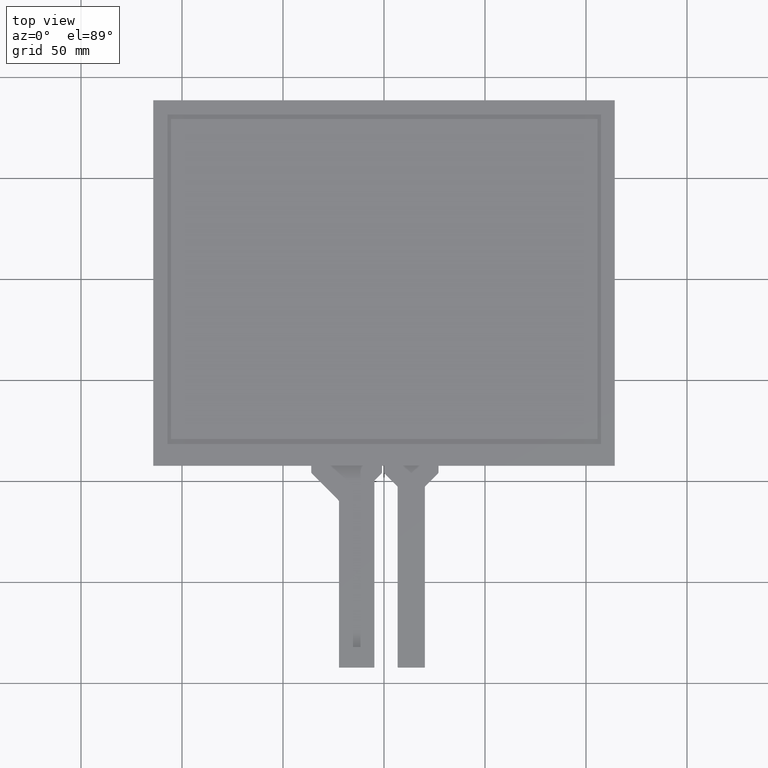
[diagram: clean part render]
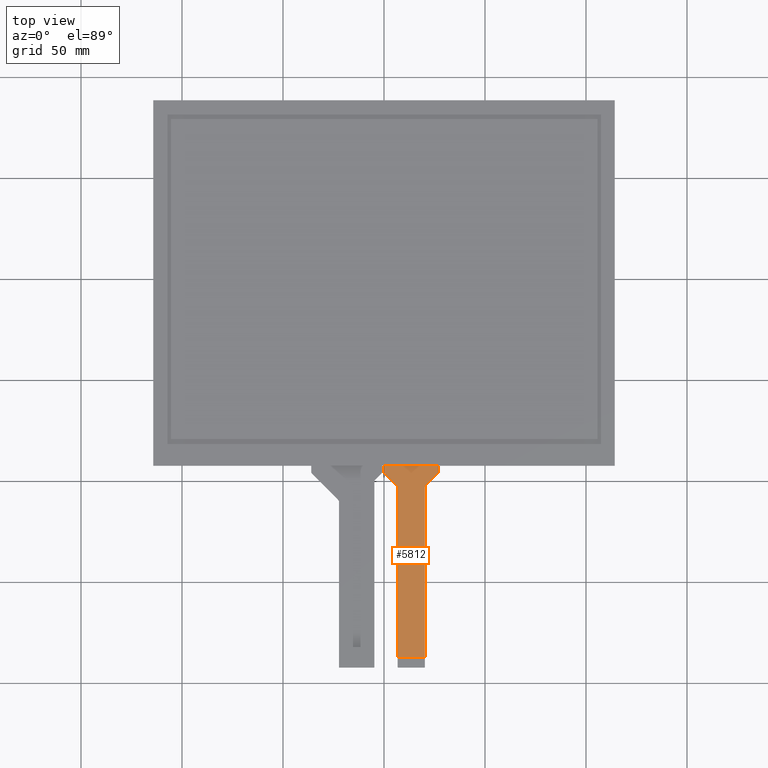
[diagram: same view with one face highlighted and labeled with its STEP entity id]
A machine part, top view. The second image highlights one B-rep face of the part: STEP entity #5812.
In plain terms, the highlighted planar face has unit normal (0, 0, 1).
Its self-contained STEP definition (entity closure, byte-faithful):
#52=PLANE('',#6130);
#336=FACE_OUTER_BOUND('',#630,.T.);
#630=EDGE_LOOP('',(#4088,#4089,#4090,#4091,#4092,#4093,#4094,#4095,#4096,
#4097,#4098,#4099));
#926=LINE('',#7930,#1766);
#936=LINE('',#7953,#1776);
#937=LINE('',#7956,#1777);
#938=LINE('',#7958,#1778);
#939=LINE('',#7960,#1779);
#940=LINE('',#7964,#1780);
#941=LINE('',#7968,#1781);
#942=LINE('',#7969,#1782);
#1766=VECTOR('',#6452,10.);
#1776=VECTOR('',#6470,10.);
#1777=VECTOR('',#6473,10.);
#1778=VECTOR('',#6474,10.);
#1779=VECTOR('',#6475,10.);
#1780=VECTOR('',#6478,10.);
#1781=VECTOR('',#6481,10.);
#1782=VECTOR('',#6482,10.);
#2604=CIRCLE('',#6123,1.);
#2607=CIRCLE('',#6128,1.);
#2608=CIRCLE('',#6131,1.);
#2609=CIRCLE('',#6132,1.);
#2628=VERTEX_POINT('',#7920);
#2629=VERTEX_POINT('',#7921);
#2632=VERTEX_POINT('',#7929);
#2640=VERTEX_POINT('',#7946);
#2641=VERTEX_POINT('',#7948);
#2642=VERTEX_POINT('',#7955);
#2643=VERTEX_POINT('',#7957);
#2644=VERTEX_POINT('',#7959);
#2645=VERTEX_POINT('',#7961);
#2646=VERTEX_POINT('',#7963);
#2647=VERTEX_POINT('',#7965);
#2648=VERTEX_POINT('',#7967);
#3204=EDGE_CURVE('',#2628,#2629,#2604,.T.);
#3208=EDGE_CURVE('',#2632,#2629,#926,.T.);
#3217=EDGE_CURVE('',#2640,#2641,#2607,.T.);
#3220=EDGE_CURVE('',#2628,#2641,#936,.T.);
#3221=EDGE_CURVE('',#2640,#2642,#937,.T.);
#3222=EDGE_CURVE('',#2643,#2642,#938,.T.);
#3223=EDGE_CURVE('',#2643,#2644,#939,.T.);
#3224=EDGE_CURVE('',#2645,#2644,#2608,.T.);
#3225=EDGE_CURVE('',#2645,#2646,#940,.T.);
#3226=EDGE_CURVE('',#2647,#2646,#2609,.T.);
#3227=EDGE_CURVE('',#2647,#2648,#941,.T.);
#3228=EDGE_CURVE('',#2648,#2632,#942,.T.);
#4088=ORIENTED_EDGE('',*,*,#3217,.F.);
#4089=ORIENTED_EDGE('',*,*,#3221,.T.);
#4090=ORIENTED_EDGE('',*,*,#3222,.F.);
#4091=ORIENTED_EDGE('',*,*,#3223,.T.);
#4092=ORIENTED_EDGE('',*,*,#3224,.F.);
#4093=ORIENTED_EDGE('',*,*,#3225,.T.);
#4094=ORIENTED_EDGE('',*,*,#3226,.F.);
#4095=ORIENTED_EDGE('',*,*,#3227,.T.);
#4096=ORIENTED_EDGE('',*,*,#3228,.T.);
#4097=ORIENTED_EDGE('',*,*,#3208,.T.);
#4098=ORIENTED_EDGE('',*,*,#3204,.F.);
#4099=ORIENTED_EDGE('',*,*,#3220,.T.);
#5812=ADVANCED_FACE('',(#336),#52,.T.);
#6123=AXIS2_PLACEMENT_3D('',#7922,#6444,#6445);
#6128=AXIS2_PLACEMENT_3D('',#7949,#6464,#6465);
#6130=AXIS2_PLACEMENT_3D('',#7954,#6471,#6472);
#6131=AXIS2_PLACEMENT_3D('',#7962,#6476,#6477);
#6132=AXIS2_PLACEMENT_3D('',#7966,#6479,#6480);
#6444=DIRECTION('center_axis',(0.,0.,1.));
#6445=DIRECTION('ref_axis',(-0.923166632761977,0.384400010607327,0.));
#6452=DIRECTION('',(-4.45574458043541E-16,1.,0.));
#6464=DIRECTION('center_axis',(0.,0.,-1.));
#6465=DIRECTION('ref_axis',(0.923166632761977,-0.384400010607327,0.));
#6470=DIRECTION('',(0.709730526852057,0.704473263690185,0.));
#6471=DIRECTION('center_axis',(0.,0.,1.));
#6472=DIRECTION('ref_axis',(1.,0.,0.));
#6473=DIRECTION('',(0.,1.,0.));
#6474=DIRECTION('',(1.,1.55479810888425E-16,0.));
#6475=DIRECTION('',(1.2246467991474E-16,-1.,0.));
#6476=DIRECTION('center_axis',(0.,0.,-1.));
#6477=DIRECTION('ref_axis',(-0.92458924037976,-0.380965532002539,0.));
#6478=DIRECTION('',(0.704473263690185,-0.709730526852057,0.));
#6479=DIRECTION('center_axis',(0.,0.,1.));
#6480=DIRECTION('ref_axis',(0.92458924037976,0.38096553200254,0.));
#6481=DIRECTION('',(1.23909335726321E-16,-1.,0.));
#6482=DIRECTION('',(1.,0.,0.));
#7920=CARTESIAN_POINT('',(20.5455267363099,-102.306662350626,-0.2));
#7921=CARTESIAN_POINT('',(20.2500000000001,-103.016392877478,-0.2));
#7922=CARTESIAN_POINT('Origin',(21.2500000000001,-103.016392877478,-0.2));
#7929=CARTESIAN_POINT('',(20.2500000000001,-187.3,-0.2));
#7930=CARTESIAN_POINT('',(20.2500000000001,-192.3,-0.2));
#7946=CARTESIAN_POINT('',(27.0000000000001,-95.4836071225221,-0.2));
#7948=CARTESIAN_POINT('',(26.7044732636903,-96.1933376493741,-0.2));
#7949=CARTESIAN_POINT('Origin',(26.0000000000001,-95.4836071225221,-0.2));
#7953=CARTESIAN_POINT('',(20.2500000000001,-102.6,-0.2));
#7954=CARTESIAN_POINT('Origin',(13.5000000000001,-142.3,-0.2));
#7955=CARTESIAN_POINT('',(27.0000000000001,-92.3,-0.2));
#7956=CARTESIAN_POINT('',(27.0000000000001,-95.8999999999999,-0.2));
#7957=CARTESIAN_POINT('',(8.43769498715119E-14,-92.3,-0.2));
#7958=CARTESIAN_POINT('',(63.8750000000001,-92.2999999999999,-0.2));
#7959=CARTESIAN_POINT('',(8.47673626663537E-14,-95.4879623995558,-0.2));
#7960=CARTESIAN_POINT('',(8.43769498715119E-14,-92.3,-0.2));
#7961=CARTESIAN_POINT('',(0.290269473148024,-96.192435663246,-0.2));
#7962=CARTESIAN_POINT('Origin',(1.00000000000008,-95.4879623995558,-0.2));
#7963=CARTESIAN_POINT('',(6.45973052685215,-102.407937471082,-0.2));
#7964=CARTESIAN_POINT('',(8.4817822719205E-14,-95.8999999999999,-0.2));
#7965=CARTESIAN_POINT('',(6.75000000000009,-103.112410734772,-0.2));
#7966=CARTESIAN_POINT('Origin',(5.75000000000009,-103.112410734772,-0.2));
#7967=CARTESIAN_POINT('',(6.7500000000001,-187.3,-0.2));
#7968=CARTESIAN_POINT('',(6.75000000000009,-102.700373134328,-0.2));
#7969=CARTESIAN_POINT('',(10.1250000000001,-187.3,-0.2));